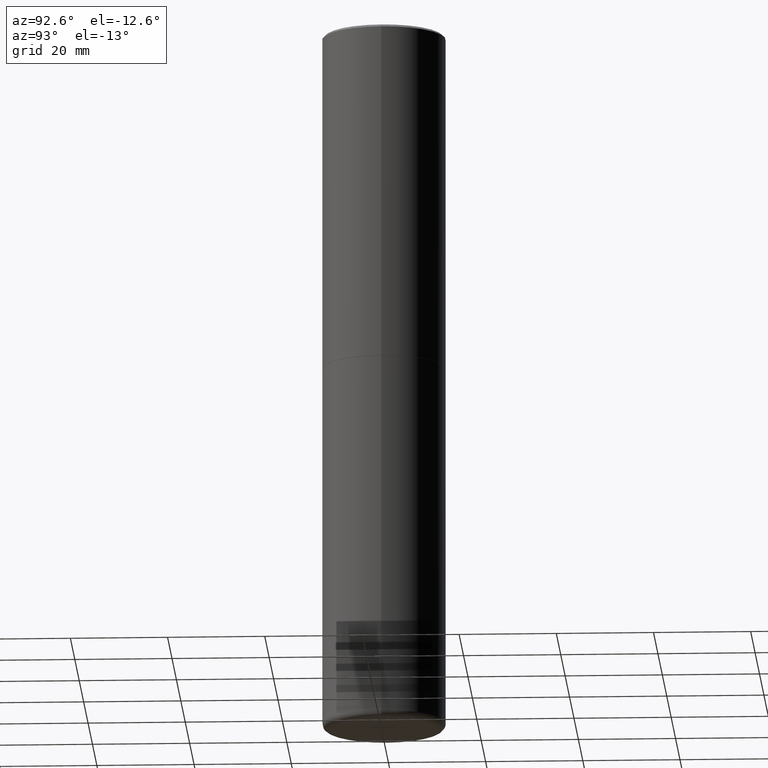
[diagram: clean part render]
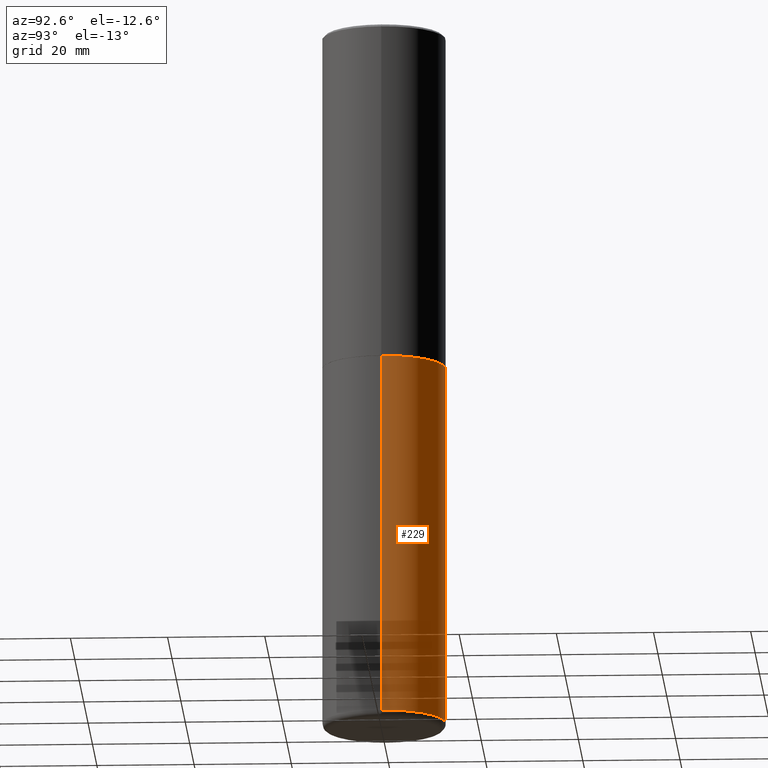
[diagram: same view with one face highlighted and labeled with its STEP entity id]
A machine part, auxiliary view. The second image highlights one B-rep face of the part: STEP entity #229.
In plain terms, the highlighted cylindrical surface (partial cylindrical patch) has radius 12.7 mm, axis along (-0, 0, 1).
Its self-contained STEP definition (entity closure, byte-faithful):
#31 = VERTEX_POINT ( 'NONE', #276 ) ;
#37 = DIRECTION ( 'NONE',  ( -2.445468806185136877E-29, 3.491481338843145188E-15, 1.000000000000000000 ) ) ;
#43 = VECTOR ( 'NONE', #37, 39.37007874015748143 ) ;
#50 = AXIS2_PLACEMENT_3D ( 'NONE', #162, #292, #324 ) ;
#55 = CARTESIAN_POINT ( 'NONE',  ( 6.725039217009123399E-29, -9.601573681818648281E-15, -2.749999999999999556 ) ) ;
#87 = ORIENTED_EDGE ( 'NONE', *, *, #168, .T. ) ;
#111 = VERTEX_POINT ( 'NONE', #256 ) ;
#136 = CARTESIAN_POINT ( 'NONE',  ( 0.000000000000000000, 0.000000000000000000, 0.000000000000000000 ) ) ;
#153 = LINE ( 'NONE', #308, #210 ) ;
#162 = CARTESIAN_POINT ( 'NONE',  ( 1.391471750719342616E-28, -1.986652881801749632E-14, -5.689999999999999503 ) ) ;
#168 = EDGE_CURVE ( 'NONE', #111, #218, #365, .T. ) ;
#171 = CYLINDRICAL_SURFACE ( 'NONE', #416, 0.5000000000000000000 ) ;
#177 = VERTEX_POINT ( 'NONE', #192 ) ;
#181 = DIRECTION ( 'NONE',  ( 1.000000000000000000, -6.982962677686266711E-15, 0.000000000000000000 ) ) ;
#187 = DIRECTION ( 'NONE',  ( -2.445468806185136597E-29, 3.491481338843145583E-15, 1.000000000000000000 ) ) ;
#192 = CARTESIAN_POINT ( 'NONE',  ( 0.5000000000000000000, -1.309305502066178164E-14, -2.749999999999999556 ) ) ;
#198 = FACE_OUTER_BOUND ( 'NONE', #225, .T. ) ;
#206 = EDGE_CURVE ( 'NONE', #218, #31, #234, .T. ) ;
#210 = VECTOR ( 'NONE', #373, 39.37007874015748143 ) ;
#218 = VERTEX_POINT ( 'NONE', #294 ) ;
#225 = EDGE_LOOP ( 'NONE', ( #87, #258, #255, #413 ) ) ;
#229 = ADVANCED_FACE ( 'NONE', ( #198 ), #171, .T. ) ;
#232 = CIRCLE ( 'NONE', #271, 0.5000000000000000000 ) ;
#234 = LINE ( 'NONE', #287, #43 ) ;
#255 = ORIENTED_EDGE ( 'NONE', *, *, #387, .F. ) ;
#256 = CARTESIAN_POINT ( 'NONE',  ( 0.5000000000000002220, -2.335801015686062967E-14, -5.689999999999999503 ) ) ;
#258 = ORIENTED_EDGE ( 'NONE', *, *, #206, .T. ) ;
#271 = AXIS2_PLACEMENT_3D ( 'NONE', #55, #187, #181 ) ;
#272 = DIRECTION ( 'NONE',  ( 1.000000000000000000, -6.982962677686266711E-15, 4.876176775795935793E-29 ) ) ;
#276 = CARTESIAN_POINT ( 'NONE',  ( -0.5000000000000000000, -1.118133757111757137E-14, -2.749999999999999556 ) ) ;
#287 = CARTESIAN_POINT ( 'NONE',  ( -0.5000000000000000000, 3.552713678800500929E-15, -2.459467545127452891E-29 ) ) ;
#292 = DIRECTION ( 'NONE',  ( -2.445468806185136597E-29, 3.491481338843145583E-15, 1.000000000000000000 ) ) ;
#294 = CARTESIAN_POINT ( 'NONE',  ( -0.5000000000000002220, -1.631381513921699223E-14, -5.689999999999999503 ) ) ;
#308 = CARTESIAN_POINT ( 'NONE',  ( 0.5000000000000000000, -3.491481338843133355E-15, 2.438088387897967896E-29 ) ) ;
#324 = DIRECTION ( 'NONE',  ( 1.000000000000000000, -6.982962677686263555E-15, 0.000000000000000000 ) ) ;
#365 = CIRCLE ( 'NONE', #50, 0.4999999999999999445 ) ;
#373 = DIRECTION ( 'NONE',  ( -2.445468806185136877E-29, 3.491481338843145188E-15, 1.000000000000000000 ) ) ;
#387 = EDGE_CURVE ( 'NONE', #177, #31, #232, .T. ) ;
#388 = EDGE_CURVE ( 'NONE', #111, #177, #153, .T. ) ;
#395 = DIRECTION ( 'NONE',  ( -2.445468806185136597E-29, 3.491481338843145583E-15, 1.000000000000000000 ) ) ;
#413 = ORIENTED_EDGE ( 'NONE', *, *, #388, .F. ) ;
#416 = AXIS2_PLACEMENT_3D ( 'NONE', #136, #395, #272 ) ;